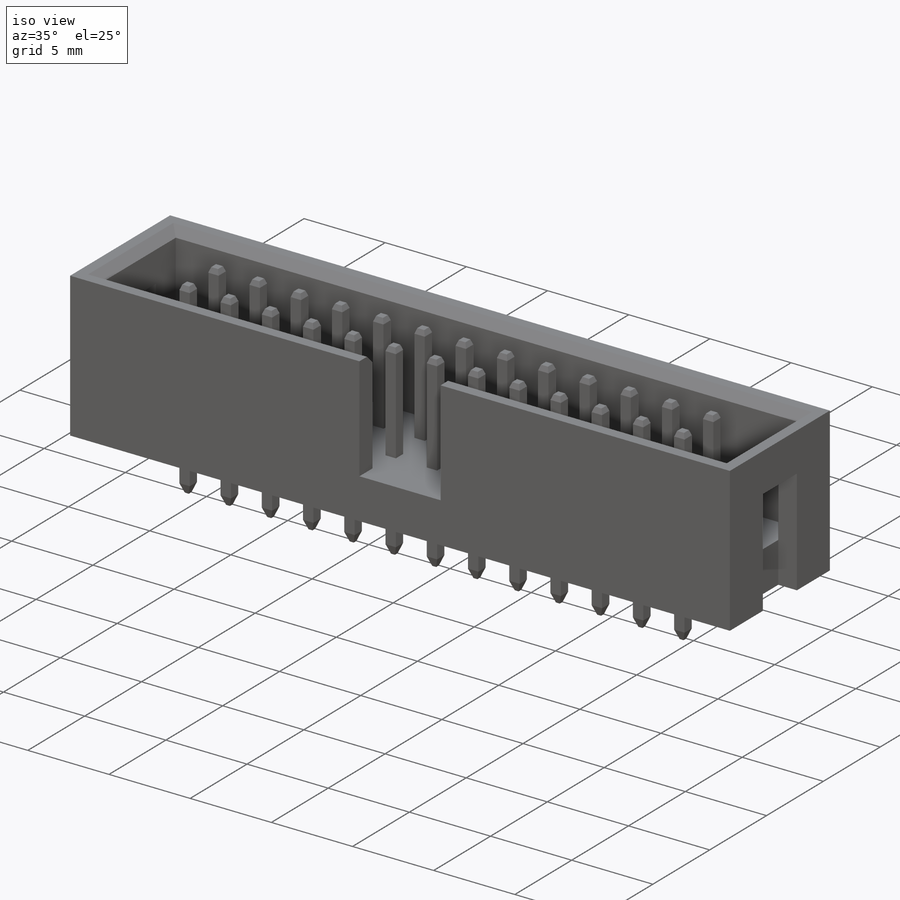
[diagram: iso view]
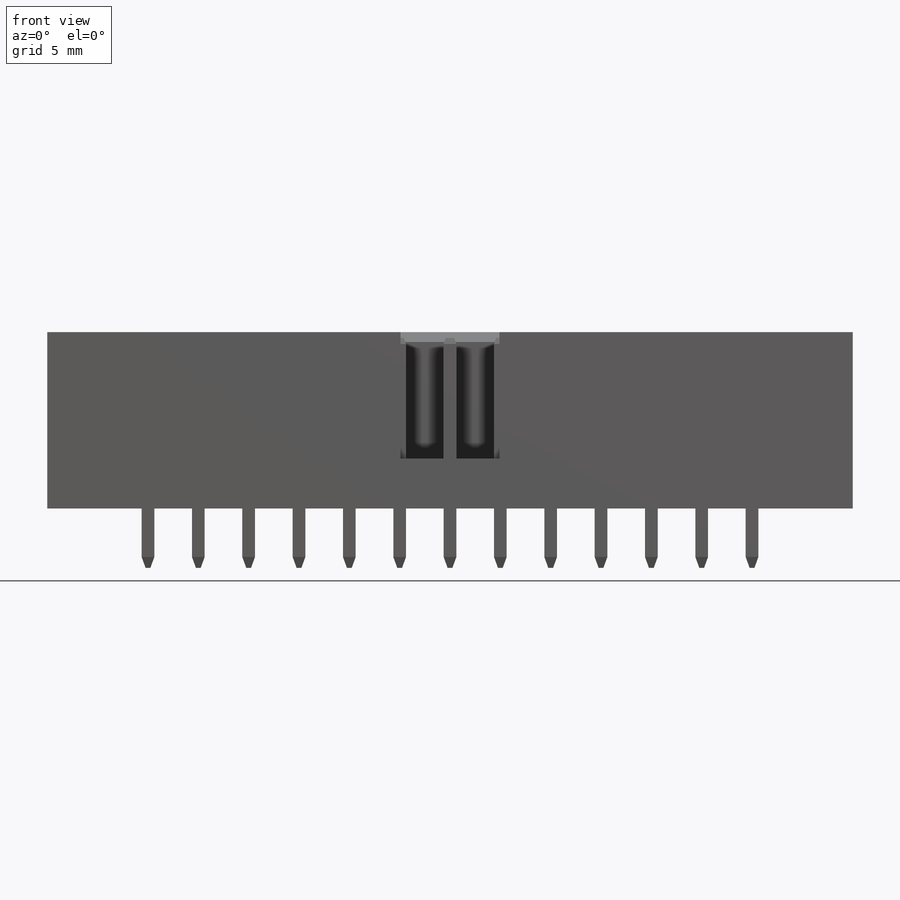
[diagram: front view]
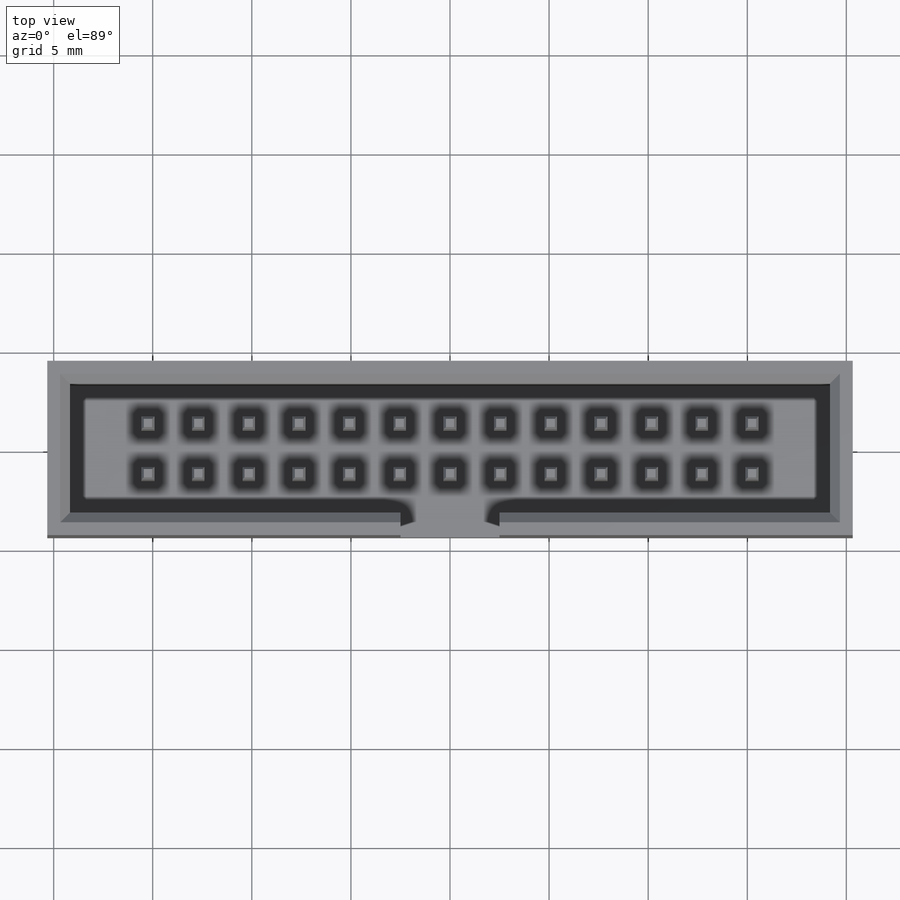
[diagram: top view]
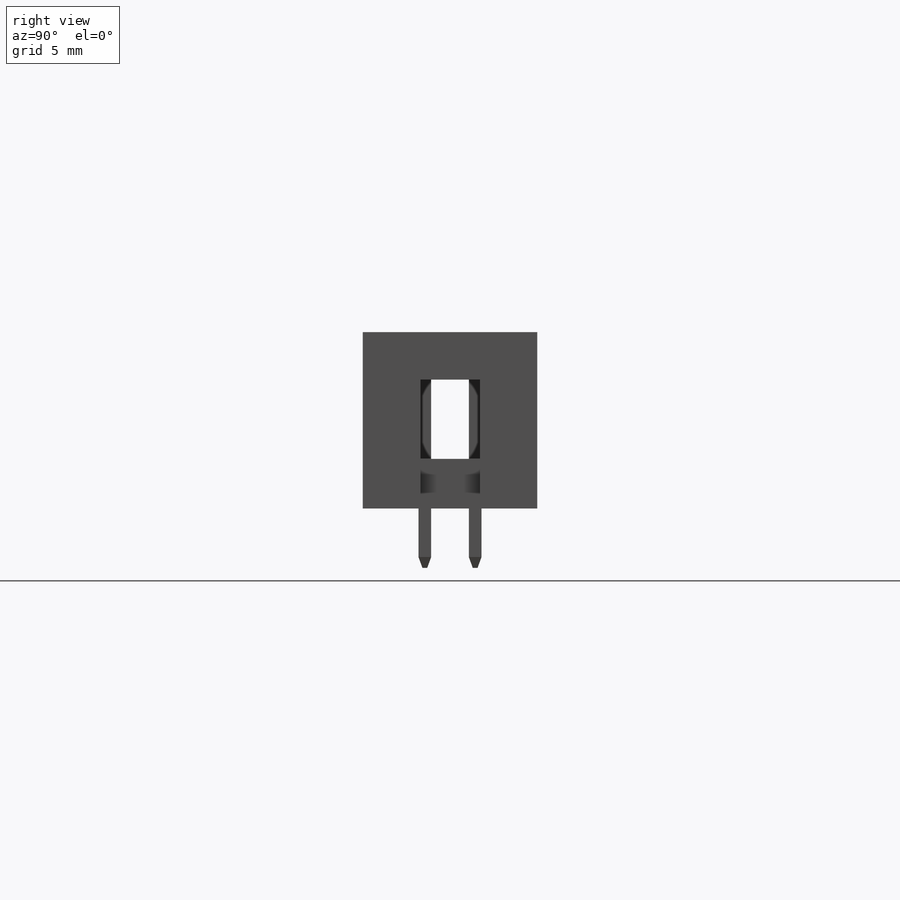
[diagram: right view]
SOLIDWORKS PART (.sldprt)
format: sldprt  version: not decoded by parser v0  size: 776,704 bytes
history: native  units: mm
features: sketch x4, extrude x3, chamfer x3, material x1, cut_extrude x1 (+13 scaffold rows collapsed)
feature tree (25):
  scaffold x13  (default folders/planes/origin — collapsed)
  material  "Material <not specified>"
  sketch  "Sketch1"  dims[D1=40.64mm D2=8.8mm]
  extrude  "Boss-Extrude1"  Depth=2.5mm
  sketch  "Sketch2"  dims[D1=6.5mm D2=19.17mm D3=2.5mm D4=1.15mm]
  extrude  "Boss-Extrude2"  Depth=6.4mm
  sketch  "Sketch3"  dims[D1=1.15mm D2=3.0mm]
  cut_extrude  "Cut-Extrude1"  Depth=6.5mm
  sketch  "Sketch4"  dims[D1=0.64mm D2=0.64mm D3=1.27mm D4=5.08mm D5=13.0 D6=2.0]
  extrude  "Boss-Extrude3"  Depth=6.1mm
  chamfer  "Chamfer2"  Distance=0.2mm Angle=70deg
  chamfer  "Chamfer3"  Distance=0.3mm Angle=20deg
  chamfer  "Chamfer4"  Distance=0.5mm Angle=45deg
decode coverage: 11 of 11 modeling features carry decoded parameters
note: suppression state not decoded; provenance and decode notes live in map.json
